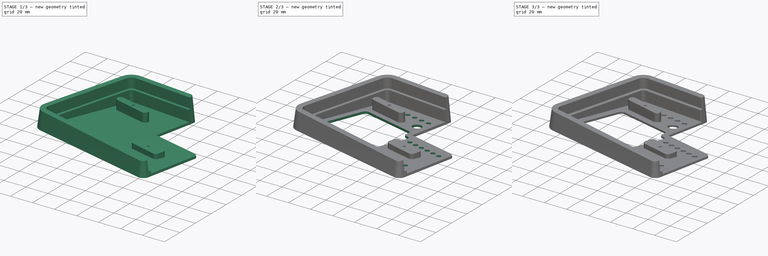
[diagram: build sequence overview — one tinted view per stage of 3, left to right]
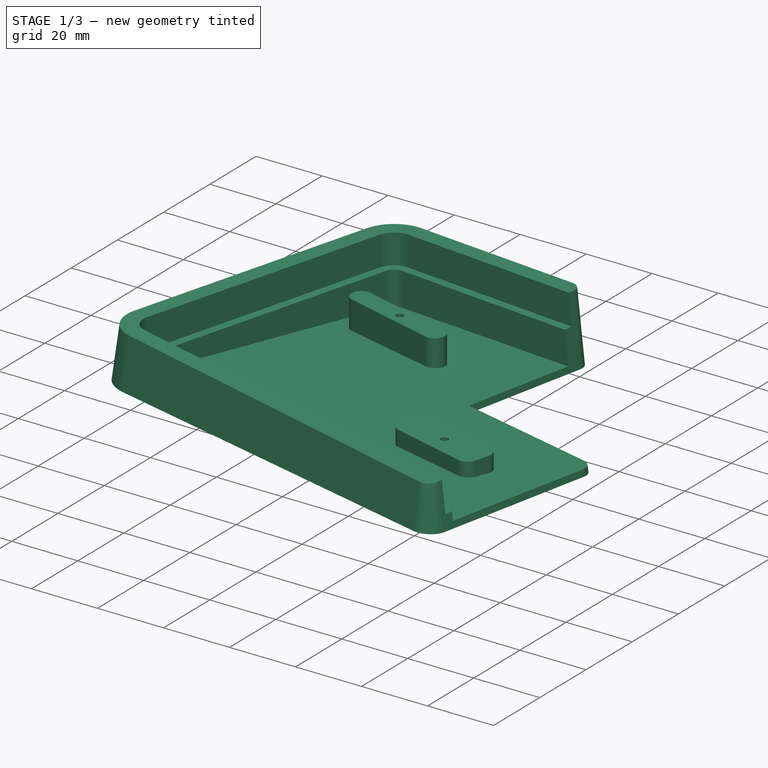
[diagram: stage 1 of 3 — iso view after this stage's code; geometry added in this stage tinted green]
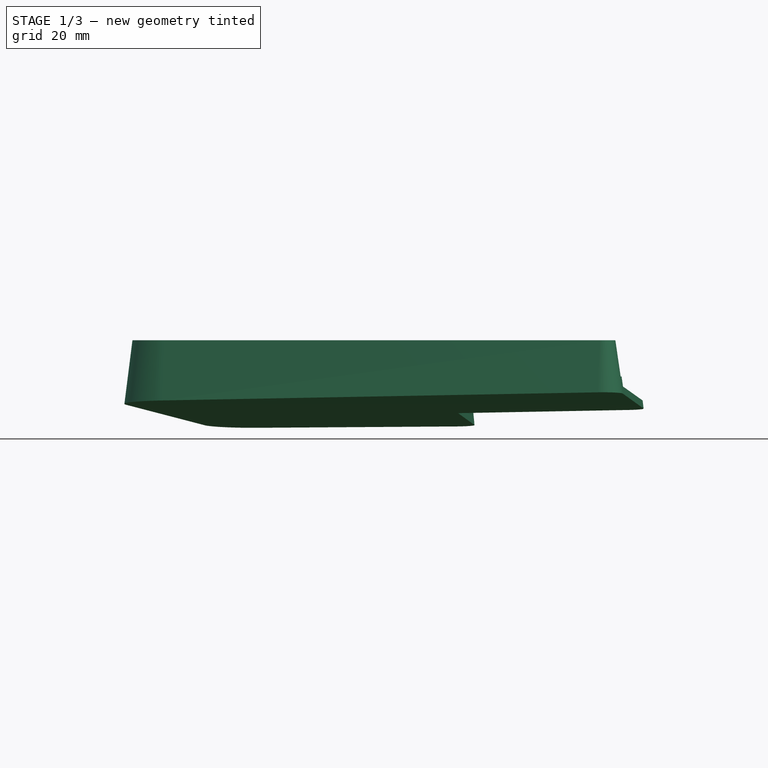
[diagram: stage 1 of 3 — front view after this stage's code; geometry added in this stage tinted green]
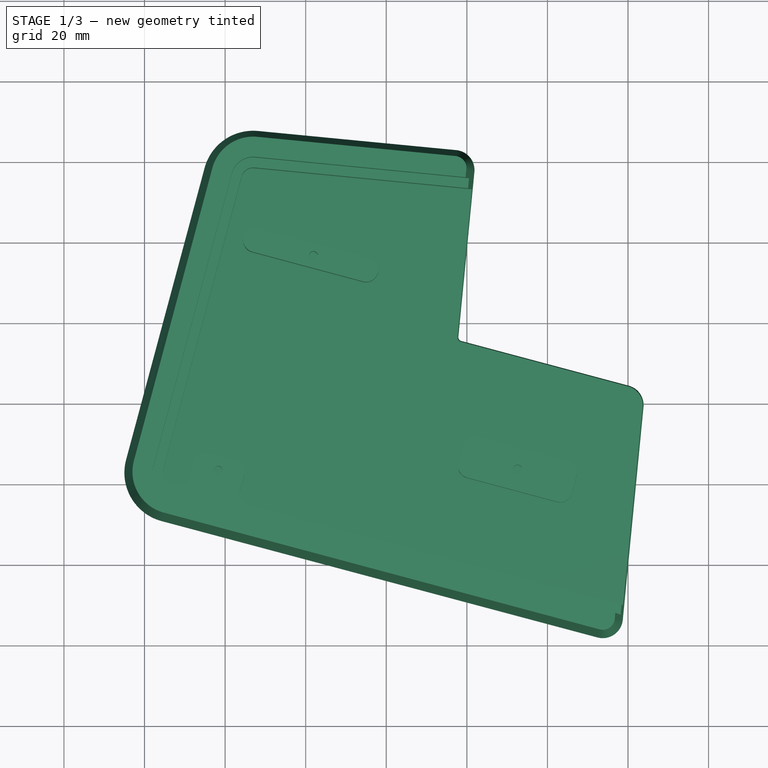
[diagram: stage 1 of 3 — top view after this stage's code; geometry added in this stage tinted green]
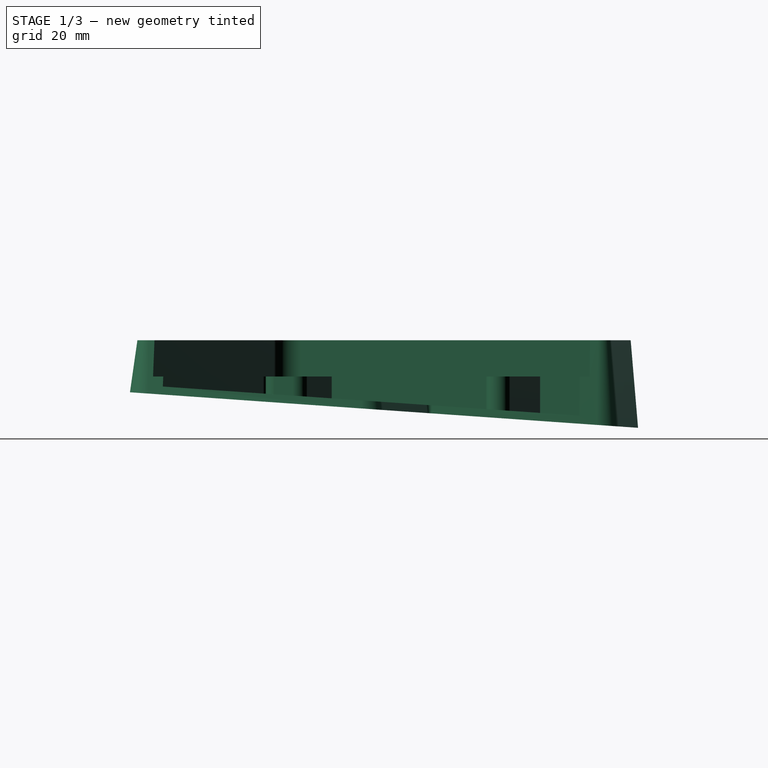
[diagram: stage 1 of 3 — right view after this stage's code; geometry added in this stage tinted green]
FCSTD DOCUMENT  (FreeCAD 0.20R)
Label: case.v10
License: All rights reserved
LicenseURL: http://en.wikipedia.org/wiki/All_rights_reserved
objects: Sketcher::SketchObject×6, PartDesign::Pocket×3, PartDesign::Fillet×2, PartDesign::AdditiveLoft×1, PartDesign::Hole×1, PartDesign::Chamfer×1, PartDesign::Body×1
note: 23 computed .brp shape members not serialized (recipe doc carries the construction recipe); baked Part::Feature solids carry a one-line shape summary decoded from their .brp

FEATURE [Sketcher::SketchObject] Sketch
  FullyConstrained = false
  Placement = pos=(0,0,0) rot=(1,0,0;-0.069813rad)
  Support = -> [XY_Plane]
  sketch-geometry (12):
    g0: LineSegment StartX=-62.6171 StartY=63.1828 StartZ=0 EndX=-111.813 EndY=67.9524 EndZ=0
    g1: ArcOfCircle CenterX=-63.0996 CenterY=58.2061 CenterZ=0 NormalX=0 NormalY=0 NormalZ=1 AngleXU=0 Radius=5 StartAngle=6.18653 EndAngle=7.75733
    g2: LineSegment StartX=-58.123 StartY=57.7236 StartZ=0 EndX=-62.102 EndY=16.6828 EndZ=0
    g3: LineSegment StartX=-61.3655 StartY=15.6204 StartZ=0 EndX=-19.833 EndY=4.49177 EndZ=0
    g4: ArcOfCircle CenterX=-21.127 CenterY=-0.337863 CenterZ=0 NormalX=0 NormalY=0 NormalZ=1 AngleXU=0 Radius=5 StartAngle=6.18653 EndAngle=7.59218
    g5: LineSegment StartX=-16.1504 StartY=-0.820364 StartZ=0 EndX=-21.2963 EndY=-53.897 EndZ=0
    g6: ArcOfCircle CenterX=-26.273 CenterY=-53.4145 CenterZ=0 NormalX=0 NormalY=0 NormalZ=1 AngleXU=0 Radius=5 StartAngle=4.45059 EndAngle=6.18653
    g7: LineSegment StartX=-135.733 StartY=-29.2611 StartZ=0 EndX=-27.5671 EndY=-58.2442 EndZ=0
    g8: ArcOfCircle CenterX=-132.498 CenterY=-17.187 CenterZ=0 NormalX=0 NormalY=0 NormalZ=1 AngleXU=0 Radius=12.5 StartAngle=2.87979 EndAngle=4.45059
    g9: LineSegment StartX=-125.093 StartY=58.746 StartZ=0 EndX=-144.572 EndY=-13.9518 EndZ=0
    g10: ArcOfCircle CenterX=-113.019 CenterY=55.5108 CenterZ=0 NormalX=0 NormalY=0 NormalZ=1 AngleXU=0 Radius=12.5 StartAngle=1.47415 EndAngle=2.87979
    g11: ArcOfCircle CenterX=-61.1067 CenterY=16.5863 CenterZ=0 NormalX=0 NormalY=0 NormalZ=1 AngleXU=0 Radius=1 StartAngle=3.04494 EndAngle=4.45059
  constraints (12):
    c: Coincident(g8,g9)
    c: Coincident(g7,g8)
    c: Coincident(g9,g10)
    c: Coincident(g0,g10)
    c: Coincident(g0,g1)
    c: Coincident(g2,g11)
    c: Coincident(g3,g11)
    c: Coincident(g1,g2)
    c: Coincident(g6,g7)
    c: Coincident(g5,g6)
    c: Coincident(g3,g4)
    c: Coincident(g4,g5)
FEATURE [Sketcher::SketchObject] Sketch001
  FullyConstrained = false
  Placement = pos=(0,0,17) rot=(0,0,1;0rad)
  Support = -> [XY_Plane]
  sketch-geometry (12):
    g0: LineSegment StartX=-123.161 StartY=58.2284 StartZ=0 EndX=-142.64 EndY=-14.4694 EndZ=0
    g1: ArcOfCircle CenterX=-132.498 CenterY=-17.187 CenterZ=0 NormalX=0 NormalY=0 NormalZ=1 AngleXU=0 Radius=10.5 StartAngle=2.87979 EndAngle=4.45059
    g2: ArcOfCircle CenterX=-113.019 CenterY=55.5108 CenterZ=0 NormalX=0 NormalY=0 NormalZ=1 AngleXU=0 Radius=10.5 StartAngle=1.47415 EndAngle=2.87979
    g3: LineSegment StartX=-62.8101 StartY=61.1921 StartZ=0 EndX=-112.006 EndY=65.9618 EndZ=0
    g4: ArcOfCircle CenterX=-63.0996 CenterY=58.2061 CenterZ=0 NormalX=0 NormalY=0 NormalZ=1 AngleXU=0 Radius=3 StartAngle=6.18653 EndAngle=7.75733
    g5: LineSegment StartX=-60.1136 StartY=57.9166 StartZ=0 EndX=-64.0927 EndY=16.8758 EndZ=0
    g6: ArcOfCircle CenterX=-61.1067 CenterY=16.5863 CenterZ=0 NormalX=0 NormalY=0 NormalZ=1 AngleXU=0 Radius=3 StartAngle=3.04494 EndAngle=4.45059
    g7: LineSegment StartX=-61.8831 StartY=13.6885 StartZ=0 EndX=-20.3506 EndY=2.55991 EndZ=0
    g8: ArcOfCircle CenterX=-21.127 CenterY=-0.337863 CenterZ=0 NormalX=0 NormalY=0 NormalZ=1 AngleXU=0 Radius=3 StartAngle=6.18653 EndAngle=7.59218
    g9: LineSegment StartX=-18.141 StartY=-0.627364 StartZ=0 EndX=-23.287 EndY=-53.704 EndZ=0
    g10: LineSegment StartX=-135.216 StartY=-27.3292 StartZ=0 EndX=-27.0494 EndY=-56.3123 EndZ=0
    g11: ArcOfCircle CenterX=-26.273 CenterY=-53.4145 CenterZ=0 NormalX=0 NormalY=0 NormalZ=1 AngleXU=0 Radius=3 StartAngle=4.45059 EndAngle=6.18653
  constraints (12):
    c: Coincident(g0,g1)
    c: Coincident(g1,g10)
    c: Coincident(g0,g2)
    c: Coincident(g2,g3)
    c: Coincident(g5,g6)
    c: Coincident(g3,g4)
    c: Coincident(g6,g7)
    c: Coincident(g4,g5)
    c: Coincident(g10,g11)
    c: Coincident(g9,g11)
    c: Coincident(g7,g8)
    c: Coincident(g8,g9)
FEATURE [PartDesign::AdditiveLoft] AdditiveLoft
  Closed = true
  Profile = -> Sketch
  Ruled = true
  Sections = -> [Sketch001]
FEATURE [Sketcher::SketchObject] Sketch002
  FullyConstrained = false
  MapMode = 5
  Placement = pos=(0,0,17) rot=(0,0,1;0rad)
  Support = -> [AdditiveLoft]
  sketch-geometry (6):
    g0: ArcOfCircle CenterX=-132.498 CenterY=-17.187 CenterZ=0 NormalX=0 NormalY=0 NormalZ=1 AngleXU=0 Radius=5.5 StartAngle=2.87979 EndAngle=4.45059
    g1: LineSegment StartX=-118.332 StartY=56.9343 StartZ=0 EndX=-137.811 EndY=-15.7635 EndZ=0
    g2: ArcOfCircle CenterX=-113.019 CenterY=55.5108 CenterZ=0 NormalX=0 NormalY=0 NormalZ=1 AngleXU=0 Radius=5.5 StartAngle=1.47415 EndAngle=2.87979
    g3: LineSegment StartX=21.7349 StartY=47.9718 StartZ=0 EndX=-112.488 EndY=60.9851 EndZ=0
    g4: LineSegment StartX=-133.922 StartY=-22.4996 StartZ=0 EndX=11.1342 EndY=-61.3672 EndZ=0
    g5: LineSegment StartX=21.7349 StartY=47.9718 StartZ=0 EndX=11.1342 EndY=-61.3672 EndZ=0
  constraints (6):
    c: Coincident(g0,g1)
    c: Coincident(g0,g4)
    c: Coincident(g1,g2)
    c: Coincident(g2,g3)
    c: Coincident(g4,g5)
    c: Coincident(g3,g5)
FEATURE [PartDesign::Pocket] Pocket
  BaseFeature = -> AdditiveLoft
  Direction = (0,0,-1)
  Length = 9
  Length2 = 5
  Profile = -> Sketch002
  ReferenceAxis = -> Sketch002 [N_Axis]
  Type = 0
FEATURE [Sketcher::SketchObject] Sketch003
  FullyConstrained = false
  MapMode = 5
  Placement = pos=(0,0,8) rot=(0,0,1;0rad)
  Support = -> [Pocket]
  sketch-geometry (33):
    g0: Circle CenterX=-121.71 CenterY=-16.6741 CenterZ=0 NormalX=0 NormalY=0 NormalZ=-1 AngleXU=0 Radius=1.1
    g1: Circle CenterX=-47.4001 CenterY=-16.3717 CenterZ=0 NormalX=0 NormalY=0 NormalZ=-1 AngleXU=0 Radius=1.1
    g2: Circle CenterX=-98.1026 CenterY=36.658 CenterZ=0 NormalX=0 NormalY=0 NormalZ=-1 AngleXU=0 Radius=1.1
    g3: LineSegment StartX=-115.917 StartY=56.2872 StartZ=0 EndX=-135.396 EndY=-16.4105 EndZ=0
    g4: ArcOfCircle CenterX=-113.019 CenterY=55.5108 CenterZ=0 NormalX=0 NormalY=0 NormalZ=1 AngleXU=0 Radius=3 StartAngle=1.47415 EndAngle=2.87979
    g5: ArcOfCircle CenterX=-132.498 CenterY=-17.187 CenterZ=0 NormalX=0 NormalY=0 NormalZ=1 AngleXU=0 Radius=3 StartAngle=2.87979 EndAngle=4.45059
    g6: ArcOfCircle CenterX=-57.9645 CenterY=-11.1728 CenterZ=0 NormalX=0 NormalY=0 NormalZ=1 AngleXU=0 Radius=3 StartAngle=1.309 EndAngle=2.87979
    g7: LineSegment StartX=-57.188 StartY=-8.27505 StartZ=0 EndX=-34.8751 EndY=-14.2538 EndZ=0
    g8: ArcOfCircle CenterX=-35.6516 CenterY=-17.1516 CenterZ=0 NormalX=0 NormalY=0 NormalZ=1 AngleXU=0 Radius=3 StartAngle=6.02139 EndAngle=7.59218
    g9: LineSegment StartX=-32.7538 StartY=-17.928 StartZ=0 EndX=-33.9379 EndY=-22.3471 EndZ=0
    g10: ArcOfCircle CenterX=-36.8357 CenterY=-21.5707 CenterZ=0 NormalX=0 NormalY=0 NormalZ=1 AngleXU=0 Radius=3 StartAngle=4.45059 EndAngle=6.02139
    g11: LineSegment StartX=-59.925 StartY=-18.4897 StartZ=0 EndX=-37.6121 EndY=-24.4684 EndZ=0
    g12: LineSegment StartX=-62.0463 StartY=-14.8155 StartZ=0 EndX=-60.8622 EndY=-10.3964 EndZ=0
    g13: ArcOfCircle CenterX=-59.1486 CenterY=-15.5919 CenterZ=0 NormalX=0 NormalY=0 NormalZ=1 AngleXU=0 Radius=3 StartAngle=2.87979 EndAngle=4.45059
    g14: ArcOfCircle CenterX=-112.47 CenterY=40.5337 CenterZ=0 NormalX=0 NormalY=0 NormalZ=1 AngleXU=0 Radius=3 StartAngle=1.309 EndAngle=2.87979
    g15: LineSegment StartX=-115.381 StartY=41.2618 StartZ=0 EndX=-115.368 EndY=41.3101 EndZ=0
    g16: ArcOfCircle CenterX=-112.483 CenterY=40.4854 CenterZ=0 NormalX=0 NormalY=0 NormalZ=1 AngleXU=0 Radius=3 StartAngle=2.87979 EndAngle=4.45059
    g17: LineSegment StartX=-113.26 StartY=37.5876 StartZ=0 EndX=-85.7972 EndY=30.2291 EndZ=0
    g18: ArcOfCircle CenterX=-85.0208 CenterY=33.1268 CenterZ=0 NormalX=0 NormalY=0 NormalZ=1 AngleXU=0 Radius=3 StartAngle=4.45059 EndAngle=6.02139
    g19: LineSegment StartX=-84.2314 StartY=36.0729 StartZ=0 EndX=-111.694 EndY=43.4315 EndZ=0
    g20: LineSegment StartX=-82.123 StartY=32.3504 StartZ=0 EndX=-82.1101 EndY=32.3987 EndZ=0
    g21: ArcOfCircle CenterX=-85.0078 CenterY=33.1751 CenterZ=0 NormalX=0 NormalY=0 NormalZ=1 AngleXU=0 Radius=3 StartAngle=6.02139 EndAngle=7.59218
    g22: ArcOfCircle CenterX=-124.962 CenterY=-15.2853 CenterZ=0 NormalX=0 NormalY=0 NormalZ=1 AngleXU=0 Radius=3 StartAngle=1.309 EndAngle=2.87979
    g23: LineSegment StartX=-117.424 StartY=-14.1992 StartZ=0 EndX=-124.185 EndY=-12.3875 EndZ=0
    g24: ArcOfCircle CenterX=-118.2 CenterY=-17.097 CenterZ=0 NormalX=0 NormalY=0 NormalZ=1 AngleXU=0 Radius=3 StartAngle=6.02139 EndAngle=7.59218
    g25: LineSegment StartX=-116.283 StartY=-21.5319 StartZ=0 EndX=-115.302 EndY=-17.8735 EndZ=0
    g26: ArcOfCircle CenterX=-113.385 CenterY=-22.3084 CenterZ=0 NormalX=0 NormalY=0 NormalZ=1 AngleXU=0 Radius=3 StartAngle=2.87979 EndAngle=4.45059
    g27: LineSegment StartX=-127.859 StartY=-14.5088 StartZ=0 EndX=-128.84 EndY=-18.1673 EndZ=0
    g28: LineSegment StartX=-133.275 StartY=-20.0848 StartZ=0 EndX=-132.514 EndY=-20.2886 EndZ=0
    g29: ArcOfCircle CenterX=-131.738 CenterY=-17.3908 CenterZ=0 NormalX=0 NormalY=0 NormalZ=1 AngleXU=0 Radius=3 StartAngle=4.45059 EndAngle=6.02139
    g30: LineSegment StartX=0 StartY=47.5673 StartZ=0 EndX=-112.729 EndY=58.4968 EndZ=0
    g31: LineSegment StartX=0 StartY=47.5673 StartZ=0 EndX=0 EndY=-55.7956 EndZ=0
    g32: LineSegment StartX=-114.161 StartY=-25.2062 StartZ=0 EndX=0 EndY=-55.7956 EndZ=0
  constraints (30):
    c: Coincident(g3,g5)
    c: Coincident(g5,g28)
    c: Coincident(g28,g29)
    c: Coincident(g27,g29)
    c: Coincident(g22,g27)
    c: Coincident(g22,g23)
    c: Coincident(g23,g24)
    c: Coincident(g25,g26)
    c: Coincident(g3,g4)
    c: Coincident(g15,g16)
    c: Coincident(g14,g15)
    c: Coincident(g24,g25)
    c: Coincident(g26,g32)
    c: Coincident(g16,g17)
    c: Coincident(g4,g30)
    c: Coincident(g14,g19)
    c: Coincident(g17,g18)
    c: Coincident(g19,g21)
    c: Coincident(g18,g20)
    c: Coincident(g20,g21)
    c: Coincident(g12,g13)
    c: Coincident(g6,g12)
    c: Coincident(g11,g13)
    c: Coincident(g6,g7)
    c: Coincident(g10,g11)
    c: Coincident(g7,g8)
    c: Coincident(g9,g10)
    c: Coincident(g8,g9)
    c: Coincident(g31,g32)
    c: Coincident(g30,g31)
FEATURE [PartDesign::Pocket] Pocket001
  BaseFeature = -> Pocket
  Direction = (0,0,-1)
  Length = 0
  Length2 = 5
  Offset = -2
  Profile = -> Sketch003
  ReferenceAxis = -> Sketch003 [N_Axis]
  Type = 3
  UpToFace = -> Pocket [Face1]
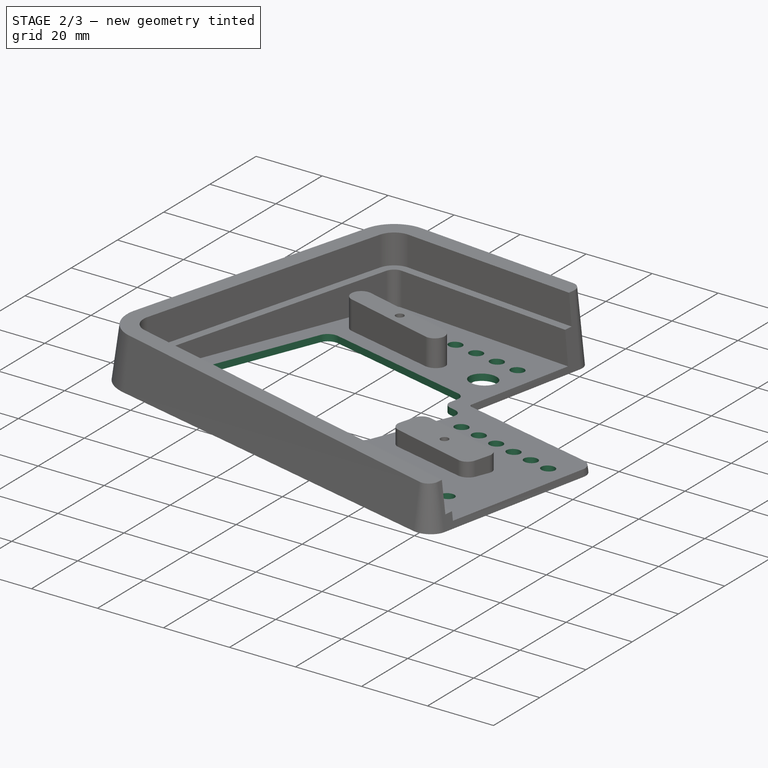
[diagram: stage 2 of 3 — iso view after this stage's code; geometry added in this stage tinted green]
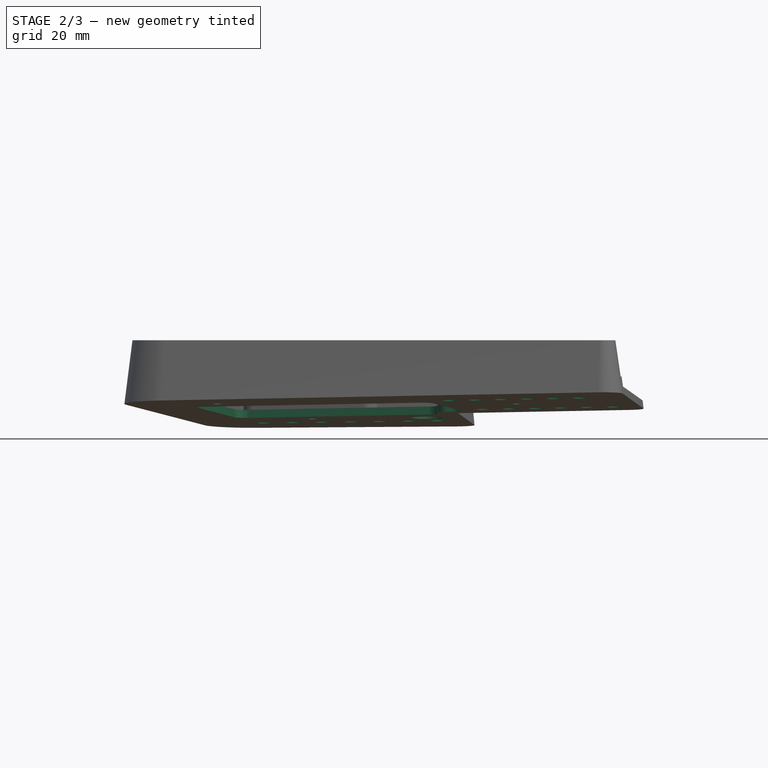
[diagram: stage 2 of 3 — front view after this stage's code; geometry added in this stage tinted green]
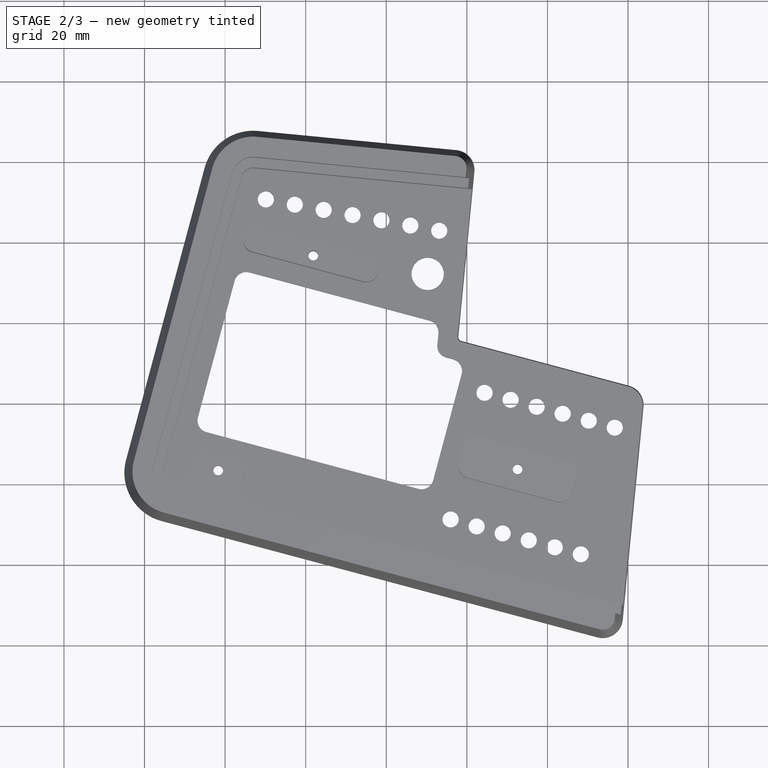
[diagram: stage 2 of 3 — top view after this stage's code; geometry added in this stage tinted green]
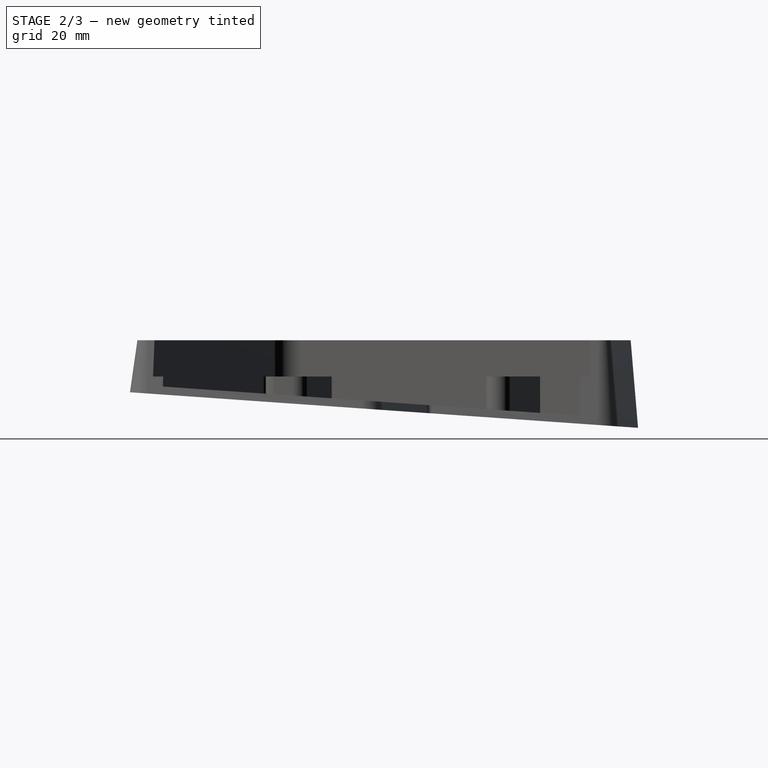
[diagram: stage 2 of 3 — right view after this stage's code; geometry added in this stage tinted green]
FEATURE [Sketcher::SketchObject] Sketch004
  FullyConstrained = false
  MapMode = 5
  Placement = pos=(0,0,17) rot=(0,0,1;0rad)
  Support = -> [AdditiveLoft]
  sketch-geometry (32):
    g0: ArcOfCircle CenterX=-123.841 CenterY=-4.19747 CenterZ=0 NormalX=0 NormalY=0 NormalZ=1 AngleXU=0 Radius=3 StartAngle=2.87979 EndAngle=4.45059
    g1: LineSegment StartX=-117.655 StartY=30.483 StartZ=0 EndX=-126.739 EndY=-3.42101 EndZ=0
    g2: ArcOfCircle CenterX=-114.757 CenterY=29.7065 CenterZ=0 NormalX=0 NormalY=0 NormalZ=1 AngleXU=0 Radius=3 StartAngle=1.309 EndAngle=2.87979
    g3: LineSegment StartX=-72.0352 StartY=-21.1847 StartZ=0 EndX=-124.618 EndY=-7.09525 EndZ=0
    g4: ArcOfCircle CenterX=-71.2587 CenterY=-18.2869 CenterZ=0 NormalX=0 NormalY=0 NormalZ=1 AngleXU=0 Radius=3 StartAngle=4.45059 EndAngle=6.02139
    g5: ArcOfCircle CenterX=-64.3379 CenterY=14.3463 CenterZ=0 NormalX=0 NormalY=0 NormalZ=1 AngleXU=0 Radius=3 StartAngle=3.04494 EndAngle=4.45059
    g6: LineSegment StartX=-67.0525 StartY=17.4348 StartZ=0 EndX=-67.3239 EndY=14.6358 EndZ=0
    g7: LineSegment StartX=-113.98 StartY=32.6043 StartZ=0 EndX=-69.2621 EndY=20.6221 EndZ=0
    g8: ArcOfCircle CenterX=-70.0385 CenterY=17.7243 CenterZ=0 NormalX=0 NormalY=0 NormalZ=1 AngleXU=0 Radius=3 StartAngle=6.18653 EndAngle=7.59218
    g9: LineSegment StartX=-65.1144 StartY=11.4485 StartZ=0 EndX=-63.4133 EndY=10.9927 EndZ=0
    g10: LineSegment StartX=-68.3609 StartY=-19.0634 StartZ=0 EndX=-61.2919 EndY=7.31846 EndZ=0
    g11: ArcOfCircle CenterX=-64.1897 CenterY=8.09492 CenterZ=0 NormalX=0 NormalY=0 NormalZ=1 AngleXU=0 Radius=3 StartAngle=6.02139 EndAngle=7.59218
    g12: Circle CenterX=-109.881 CenterY=50.75 CenterZ=0 NormalX=0 NormalY=0 NormalZ=-1 AngleXU=0 Radius=2
    g13: Circle CenterX=-102.71 CenterY=49.4549 CenterZ=0 NormalX=0 NormalY=0 NormalZ=-1 AngleXU=0 Radius=2
    g14: Circle CenterX=-95.5376 CenterY=48.1598 CenterZ=0 NormalX=0 NormalY=0 NormalZ=-1 AngleXU=0 Radius=2
    g15: Circle CenterX=-88.3657 CenterY=46.8647 CenterZ=0 NormalX=0 NormalY=0 NormalZ=-1 AngleXU=0 Radius=2
    g16: Circle CenterX=-81.1938 CenterY=45.5695 CenterZ=0 NormalX=0 NormalY=0 NormalZ=-1 AngleXU=0 Radius=2
    g17: Circle CenterX=-74.0219 CenterY=44.2744 CenterZ=0 NormalX=0 NormalY=0 NormalZ=-1 AngleXU=0 Radius=2
    g18: Circle CenterX=-66.8499 CenterY=42.9793 CenterZ=0 NormalX=0 NormalY=0 NormalZ=-1 AngleXU=0 Radius=2
    g19: Circle CenterX=-69.7254 CenterY=32.248 CenterZ=0 NormalX=0 NormalY=0 NormalZ=-1 AngleXU=0 Radius=4
    g20: Circle CenterX=-55.604 CenterY=2.68856 CenterZ=0 NormalX=0 NormalY=0 NormalZ=-1 AngleXU=0 Radius=2
    g21: Circle CenterX=-49.1397 CenterY=0.956436 CenterZ=0 NormalX=0 NormalY=0 NormalZ=-1 AngleXU=0 Radius=2
    g22: Circle CenterX=-42.6753 CenterY=-0.775688 CenterZ=0 NormalX=0 NormalY=0 NormalZ=-1 AngleXU=0 Radius=2
    g23: Circle CenterX=-36.2109 CenterY=-2.50781 CenterZ=0 NormalX=0 NormalY=0 NormalZ=-1 AngleXU=0 Radius=2
    g24: Circle CenterX=-29.7465 CenterY=-4.23994 CenterZ=0 NormalX=0 NormalY=0 NormalZ=-1 AngleXU=0 Radius=2
    g25: Circle CenterX=-23.2822 CenterY=-5.97206 CenterZ=0 NormalX=0 NormalY=0 NormalZ=-1 AngleXU=0 Radius=2
    g26: Circle CenterX=-64.0351 CenterY=-28.7765 CenterZ=0 NormalX=0 NormalY=0 NormalZ=-1 AngleXU=0 Radius=2
    g27: Circle CenterX=-57.5707 CenterY=-30.5086 CenterZ=0 NormalX=0 NormalY=0 NormalZ=-1 AngleXU=0 Radius=2
    g28: Circle CenterX=-51.1063 CenterY=-32.2407 CenterZ=0 NormalX=0 NormalY=0 NormalZ=-1 AngleXU=0 Radius=2
    g29: Circle CenterX=-44.6419 CenterY=-33.9728 CenterZ=0 NormalX=0 NormalY=0 NormalZ=-1 AngleXU=0 Radius=2
    g30: Circle CenterX=-38.1776 CenterY=-35.705 CenterZ=0 NormalX=0 NormalY=0 NormalZ=-1 AngleXU=0 Radius=2
    g31: Circle CenterX=-31.7132 CenterY=-37.4371 CenterZ=0 NormalX=0 NormalY=0 NormalZ=-1 AngleXU=0 Radius=2
FEATURE [PartDesign::Pocket] Pocket002
  BaseFeature = -> Pocket001
  Direction = (0,0,-1)
  Length = 5
  Length2 = 5
  Profile = -> Sketch004
  ReferenceAxis = -> Sketch004 [N_Axis]
  Type = 1
FEATURE [Sketcher::SketchObject] Sketch005
  ExternalGeometry = -> [Sketch003]
  FullyConstrained = true
  MapMode = 5
  Placement = pos=(0,0,8) rot=(0,0,1;0rad)
  Support = -> [Pocket]
  sketch-geometry (3):
    g0: Circle CenterX=-98.1026 CenterY=36.658 CenterZ=0 NormalX=0 NormalY=0 NormalZ=1 AngleXU=0 Radius=1.1
    g1: Circle CenterX=-47.4001 CenterY=-16.3717 CenterZ=0 NormalX=0 NormalY=0 NormalZ=1 AngleXU=0 Radius=1.1
    g2: Circle CenterX=-121.71 CenterY=-16.6741 CenterZ=0 NormalX=0 NormalY=0 NormalZ=1 AngleXU=0 Radius=1.1
  constraints (6):
    c: Coincident(g0,g-3)
    c: Coincident(g1,g-5)
    c: Coincident(g2,g-4)
    c: Equal(g2,g0)
    c: Equal(g0,g1)
    c: Diameter(g0) = 2.2
FEATURE [PartDesign::Hole] Hole
  BaseFeature = -> Pocket002
  CustomThreadClearance = 0
  Depth = 25
  DepthType = 0
  Diameter = 2.42
  DrillForDepth = false
  DrillPoint = 1
  DrillPointAngle = 118
  HoleCutCountersinkAngle = 90
  HoleCutCustomValues = false
  HoleCutDepth = 0
  HoleCutDiameter = 6.1
  HoleCutType = 0
  ModelThread = false
  Profile = -> Sketch005
  Tapered = false
  TaperedAngle = 90
  ThreadClass = 0
  ThreadDepth = 25
  ThreadDepthType = 0
  ThreadDirection = 0
  ThreadFit = 0
  ThreadSize = 7
  ThreadType = 1
  Threaded = false
  UseCustomThreadClearance = false
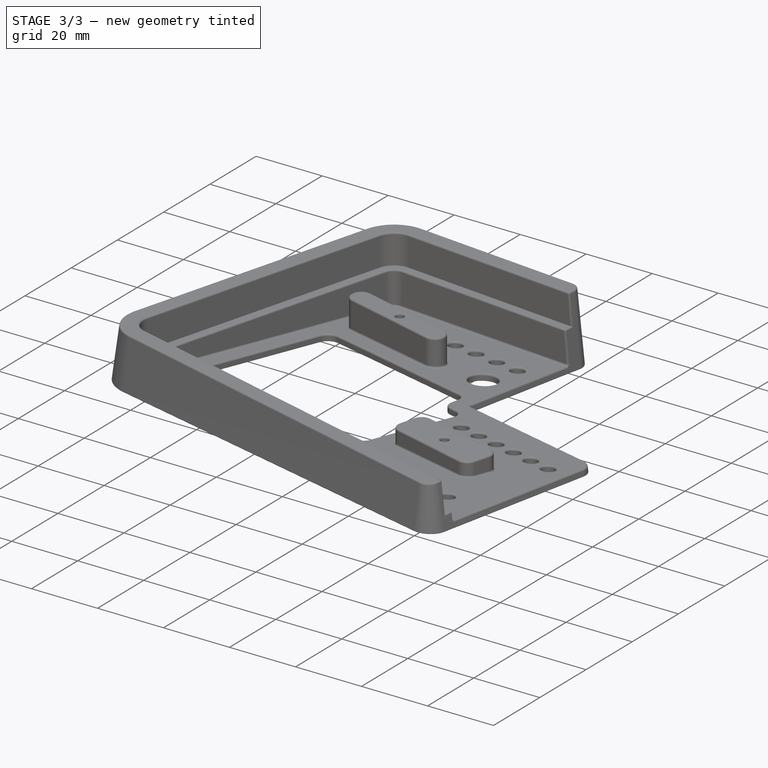
[diagram: stage 3 of 3 — iso view after this stage's code; geometry added in this stage tinted green]
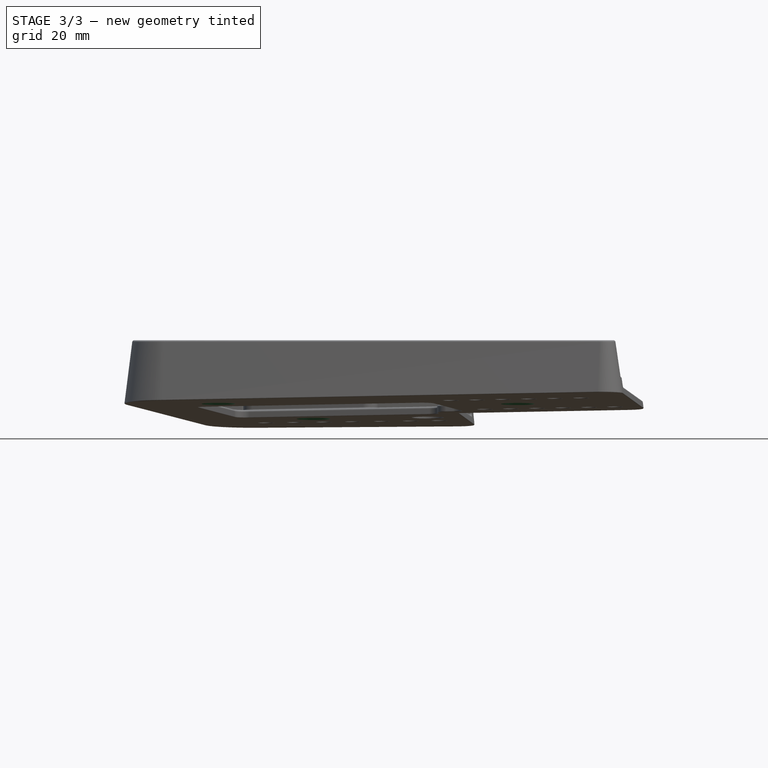
[diagram: stage 3 of 3 — front view after this stage's code; geometry added in this stage tinted green]
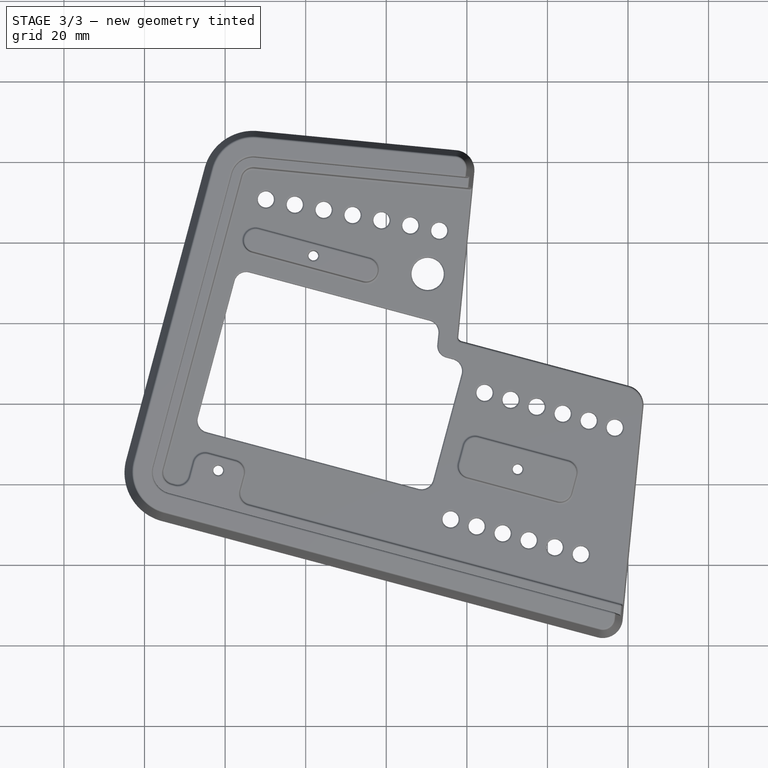
[diagram: stage 3 of 3 — top view after this stage's code; geometry added in this stage tinted green]
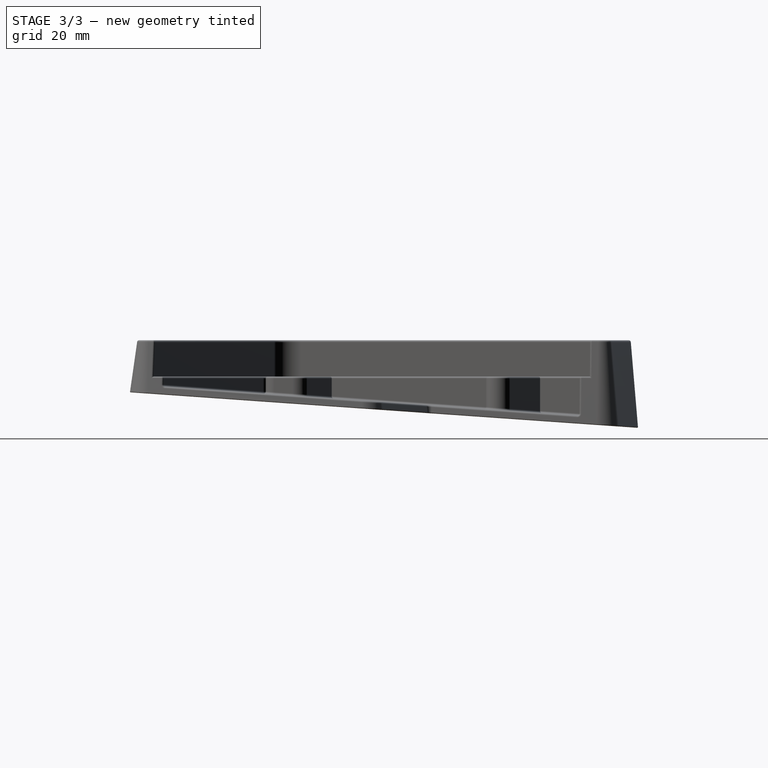
[diagram: stage 3 of 3 — right view after this stage's code; geometry added in this stage tinted green]
FEATURE [PartDesign::Chamfer] Chamfer
  Angle = 45
  Base = -> Hole [Edge43,Edge18,Edge41]
  BaseFeature = -> Hole
  ChamferType = 0
  FlipDirection = false
  Size = 3
  Size2 = 1
  SupportTransform = false
  UseAllEdges = false
FEATURE [PartDesign::Fillet] Fillet
  Base = -> Chamfer [Face54,Edge190,Edge73,Edge74,Edge75,Edge76,Edge52,Edge53,Edge54,Face50,Face59,Face90,Edge200]
  BaseFeature = -> Chamfer
  Radius = 0.5
  SupportTransform = false
  UseAllEdges = false
FEATURE [PartDesign::Fillet] Fillet001
  Base = -> Fillet [Face4]
  BaseFeature = -> Fillet
  Radius = 0.2
  SupportTransform = false
  UseAllEdges = false
FEATURE [PartDesign::Body] Body
  Group = -> [Sketch,Sketch001,AdditiveLoft,Sketch002,Pocket,Sketch003,Pocket001,Sketch004,Pocket002,Sketch005,Hole,Chamfer,Fillet,Fillet001]
  Origin = -> Origin
  Placement = pos=(0,0,0) rot=(1,0,0;0.069813rad)
  Tip = -> Fillet001
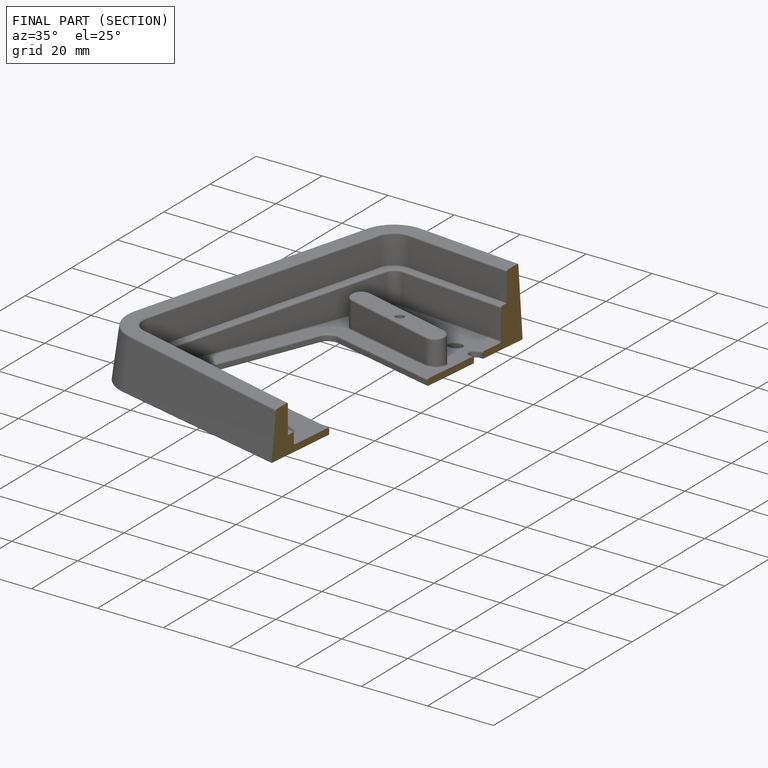
[diagram: finished part — half-section view (interior)]
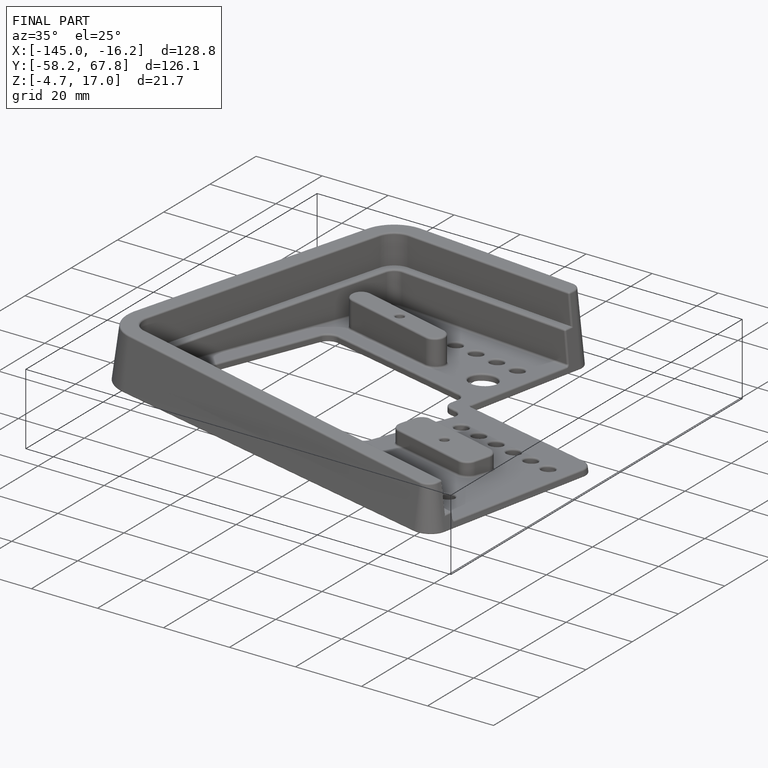
[diagram: finished part — iso view with bounding-box wireframe]
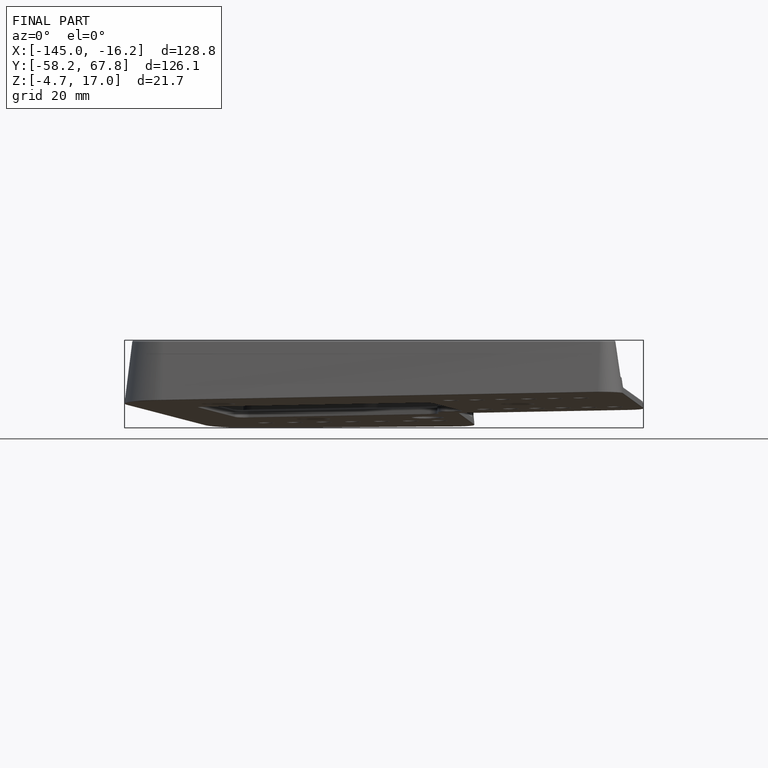
[diagram: finished part — front view with bounding-box wireframe]
